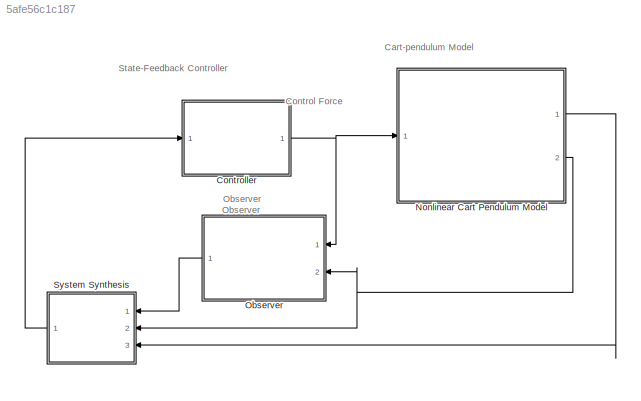
MODEL slx_5afe56c1c187
KIND model
CONFIG AbsTol = auto
CONFIG EnableMultiTasking = off
CONFIG FixedStep = auto
CONFIG MaxStep = auto
CONFIG MinStep = auto
CONFIG RelTol = 1e-3
CONFIG SampleTimeConstraint = Unconstrained
CONFIG Solver = VariableStepAuto
CONFIG SolverName = VariableStepAuto
CONFIG StartTime = 0.0
CONFIG StopTime = 10.0
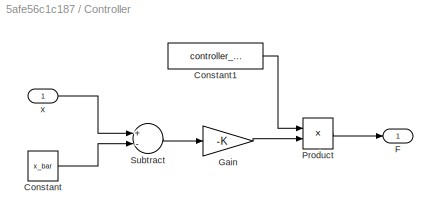
BLOCK [SubSystem] Controller
  Ports = [1, 1]
  RequestExecContextInheritance = off
BLOCK [Constant] Controller/Constant
  Value = x_bar
BLOCK [Constant] Controller/Constant1
  Value = controller_enabled
BLOCK [Outport] Controller/F
  IconDisplay = Port number
BLOCK [Gain] Controller/Gain
  Gain = -K
  Multiplication = Matrix(K*u)
  OutDataTypeStr = Inherit: Inherit via internal rule
  ParamDataTypeStr = Inherit: Inherit via internal rule
  SaturateOnIntegerOverflow = off
BLOCK [Product] Controller/Product
  InputSameDT = off
  OutDataTypeStr = Inherit: Inherit via internal rule
  Ports = [2, 1]
  RndMeth = Floor
  SaturateOnIntegerOverflow = off
BLOCK [Sum] Controller/Subtract
  InputSameDT = off
  Inputs = +-
  OutDataTypeStr = Inherit: Inherit via internal rule
  Ports = [2, 1]
  SaturateOnIntegerOverflow = off
BLOCK [Inport] Controller/x
  IconDisplay = Port number
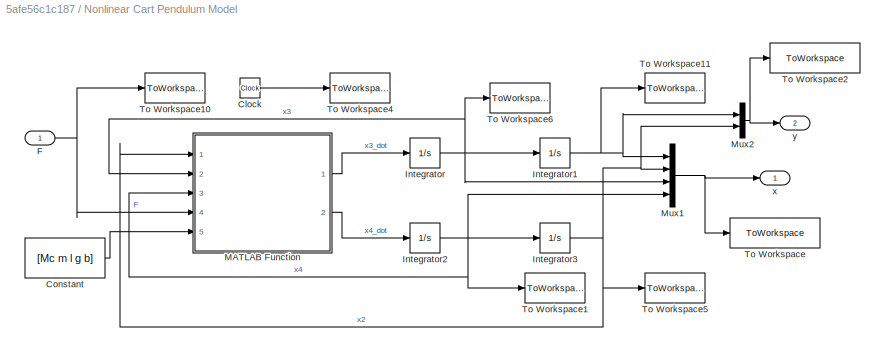
BLOCK [SubSystem] Nonlinear Cart Pendulum Model
  Ports = [1, 2]
  RequestExecContextInheritance = off
BLOCK [Clock] Nonlinear Cart Pendulum Model/Clock
BLOCK [Constant] Nonlinear Cart Pendulum Model/Constant
  Value = [Mc m l g b]
BLOCK [Inport] Nonlinear Cart Pendulum Model/F
  IconDisplay = Port number
BLOCK [Integrator] Nonlinear Cart Pendulum Model/Integrator
  InitialCondition = x0(3)
  Ports = [1, 1]
BLOCK [Integrator] Nonlinear Cart Pendulum Model/Integrator1
  InitialCondition = x0(1)
  Ports = [1, 1]
BLOCK [Integrator] Nonlinear Cart Pendulum Model/Integrator2
  InitialCondition = x0(4)
  Ports = [1, 1]
BLOCK [Integrator] Nonlinear Cart Pendulum Model/Integrator3
  InitialCondition = x0(2)
  Ports = [1, 1]
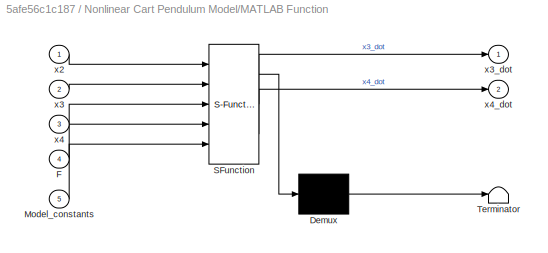
BLOCK [SubSystem] Nonlinear Cart Pendulum Model/MATLAB Function
  ErrorFcn = Stateflow.Translate.translate
  PermitHierarchicalResolution = ExplicitOnly
  Ports = [5, 2]
  RequestExecContextInheritance = off
  SFBlockType = MATLAB Function
  TreatAsAtomicUnit = on
BLOCK [Demux] Nonlinear Cart Pendulum Model/MATLAB Function/ Demux 
  Outputs = 1
  Ports = [1, 1]
BLOCK [S-Function] Nonlinear Cart Pendulum Model/MATLAB Function/ SFunction 
  EnableBusSupport = on
  FunctionName = sf_sfun
  PortCounts = [5 3]
  Ports = [5, 3]
  SFcnIsStateOwnerBlock = off
  SFunctionDeploymentMode = off
  Tag = Stateflow S-Function 2
BLOCK [Terminator] Nonlinear Cart Pendulum Model/MATLAB Function/ Terminator 
BLOCK [Inport] Nonlinear Cart Pendulum Model/MATLAB Function/F
  IconDisplay = Port number
  Port = 4
BLOCK [Inport] Nonlinear Cart Pendulum Model/MATLAB Function/Model_constants
  IconDisplay = Port number
  Port = 5
BLOCK [Inport] Nonlinear Cart Pendulum Model/MATLAB Function/x2
  IconDisplay = Port number
BLOCK [Inport] Nonlinear Cart Pendulum Model/MATLAB Function/x3
  IconDisplay = Port number
  Port = 2
BLOCK [Outport] Nonlinear Cart Pendulum Model/MATLAB Function/x3_dot
  IconDisplay = Port number
BLOCK [Inport] Nonlinear Cart Pendulum Model/MATLAB Function/x4
  IconDisplay = Port number
  Port = 3
BLOCK [Outport] Nonlinear Cart Pendulum Model/MATLAB Function/x4_dot
  IconDisplay = Port number
  Port = 2
BLOCK [Mux] Nonlinear Cart Pendulum Model/Mux1
  DisplayOption = bar
  Ports = [4, 1]
BLOCK [Mux] Nonlinear Cart Pendulum Model/Mux2
  DisplayOption = bar
  Inputs = 2
  Ports = [2, 1]
BLOCK [ToWorkspace] Nonlinear Cart Pendulum Model/To Workspace
  FixptAsFi = on
  MaxDataPoints = inf
  Ports = [1]
  SampleTime = -1
  VariableName = x
BLOCK [ToWorkspace] Nonlinear Cart Pendulum Model/To Workspace1
  MaxDataPoints = inf
  Ports = [1]
  SampleTime = -1
  VariableName = x4
BLOCK [ToWorkspace] Nonlinear Cart Pendulum Model/To Workspace10
  MaxDataPoints = inf
  Ports = [1]
  SampleTime = -1
  VariableName = F
BLOCK [ToWorkspace] Nonlinear Cart Pendulum Model/To Workspace11
  MaxDataPoints = inf
  Ports = [1]
  SampleTime = -1
  VariableName = x1
BLOCK [ToWorkspace] Nonlinear Cart Pendulum Model/To Workspace2
  FixptAsFi = on
  MaxDataPoints = inf
  Ports = [1]
  SampleTime = -1
  VariableName = y
BLOCK [ToWorkspace] Nonlinear Cart Pendulum Model/To Workspace4
  MaxDataPoints = inf
  Ports = [1]
  SampleTime = -1
  VariableName = t
BLOCK [ToWorkspace] Nonlinear Cart Pendulum Model/To Workspace5
  MaxDataPoints = inf
  Ports = [1]
  SampleTime = -1
  VariableName = x2
BLOCK [ToWorkspace] Nonlinear Cart Pendulum Model/To Workspace6
  MaxDataPoints = inf
  Ports = [1]
  SampleTime = -1
  VariableName = x3
BLOCK [Outport] Nonlinear Cart Pendulum Model/x
  IconDisplay = Port number
  VectorParamsAs1DForOutWhenUnconnected = off
BLOCK [Outport] Nonlinear Cart Pendulum Model/y
  IconDisplay = Port number
  Port = 2
  VectorParamsAs1DForOutWhenUnconnected = off
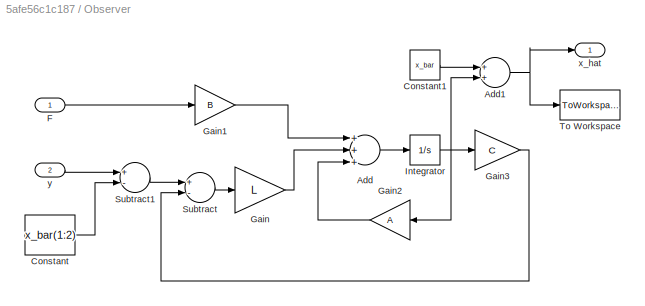
BLOCK [SubSystem] Observer
  Ports = [2, 1]
  RequestExecContextInheritance = off
BLOCK [Sum] Observer/Add
  InputSameDT = off
  Inputs = +++
  OutDataTypeStr = Inherit: Inherit via internal rule
  Ports = [3, 1]
  SaturateOnIntegerOverflow = off
BLOCK [Sum] Observer/Add1
  InputSameDT = off
  OutDataTypeStr = Inherit: Inherit via internal rule
  Ports = [2, 1]
  SaturateOnIntegerOverflow = off
BLOCK [Constant] Observer/Constant
  Value = x_bar(1:2)
BLOCK [Constant] Observer/Constant1
  Value = x_bar
BLOCK [Inport] Observer/F
  IconDisplay = Port number
BLOCK [Gain] Observer/Gain
  Gain = L
  Multiplication = Matrix(K*u)
  OutDataTypeStr = Inherit: Inherit via internal rule
  ParamDataTypeStr = Inherit: Inherit via internal rule
  SaturateOnIntegerOverflow = off
BLOCK [Gain] Observer/Gain1
  Gain = B
  Multiplication = Matrix(K*u)
  OutDataTypeStr = Inherit: Inherit via internal rule
  ParamDataTypeStr = Inherit: Inherit via internal rule
  SaturateOnIntegerOverflow = off
BLOCK [Gain] Observer/Gain2
  Gain = A
  Multiplication = Matrix(K*u)
  OutDataTypeStr = Inherit: Inherit via internal rule
  ParamDataTypeStr = Inherit: Inherit via internal rule
  SaturateOnIntegerOverflow = off
BLOCK [Gain] Observer/Gain3
  Gain = C
  Multiplication = Matrix(K*u)
  OutDataTypeStr = Inherit: Inherit via internal rule
  ParamDataTypeStr = Inherit: Inherit via internal rule
  SaturateOnIntegerOverflow = off
BLOCK [Integrator] Observer/Integrator
  Ports = [1, 1]
BLOCK [Sum] Observer/Subtract
  InputSameDT = off
  Inputs = +-
  OutDataTypeStr = Inherit: Inherit via internal rule
  Ports = [2, 1]
  SaturateOnIntegerOverflow = off
BLOCK [Sum] Observer/Subtract1
  InputSameDT = off
  Inputs = +-
  OutDataTypeStr = Inherit: Inherit via internal rule
  Ports = [2, 1]
  SaturateOnIntegerOverflow = off
BLOCK [ToWorkspace] Observer/To Workspace
  FixptAsFi = on
  MaxDataPoints = inf
  Ports = [1]
  SampleTime = -1
  VariableName = x_hat
BLOCK [Outport] Observer/x_hat
  IconDisplay = Port number
  VectorParamsAs1DForOutWhenUnconnected = off
BLOCK [Inport] Observer/y
  IconDisplay = Port number
  Port = 2
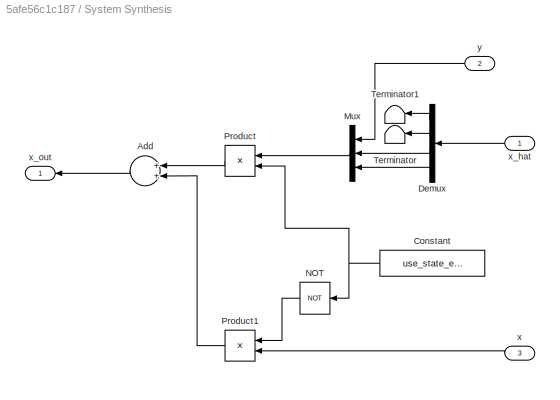
BLOCK [SubSystem] System Synthesis
  Ports = [3, 1]
  RequestExecContextInheritance = off
BLOCK [Sum] System Synthesis/Add
  InputSameDT = off
  OutDataTypeStr = Inherit: Inherit via internal rule
  Ports = [2, 1]
  SaturateOnIntegerOverflow = off
BLOCK [Constant] System Synthesis/Constant
  Value = use_state_estimates
BLOCK [Demux] System Synthesis/Demux
  DisplayOption = bar
  Ports = [1, 4]
BLOCK [Mux] System Synthesis/Mux
  DisplayOption = bar
  Inputs = 3
  Ports = [3, 1]
BLOCK [Logic] System Synthesis/NOT
  AllPortsSameDT = off
  IconShape = distinctive
  Operator = NOT
  OutDataTypeStr = boolean
  Ports = [1, 1]
BLOCK [Product] System Synthesis/Product
  InputSameDT = off
  OutDataTypeStr = Inherit: Inherit via internal rule
  Ports = [2, 1]
  RndMeth = Floor
  SaturateOnIntegerOverflow = off
BLOCK [Product] System Synthesis/Product1
  InputSameDT = off
  OutDataTypeStr = Inherit: Inherit via internal rule
  Ports = [2, 1]
  RndMeth = Floor
  SaturateOnIntegerOverflow = off
BLOCK [Terminator] System Synthesis/Terminator
BLOCK [Terminator] System Synthesis/Terminator1
BLOCK [Inport] System Synthesis/x
  IconDisplay = Port number
  Port = 3
BLOCK [Inport] System Synthesis/x_hat
  IconDisplay = Port number
BLOCK [Outport] System Synthesis/x_out
  IconDisplay = Port number
BLOCK [Inport] System Synthesis/y
  IconDisplay = Port number
  Port = 2
ANNOTATION (root): State-Feedback Controller
ANNOTATION (root): Cart-pendulum Model
ANNOTATION (root): Control Force
ANNOTATION (root): Observer
LINE Controller/Constant1:1 -> Controller/Product:1
LINE Controller/Constant:1 -> Controller/Subtract:2
LINE Controller/Gain:1 -> Controller/Product:2
LINE Controller/Product:1 -> Controller/F:1
LINE Controller/Subtract:1 -> Controller/Gain:1
LINE Controller/x:1 -> Controller/Subtract:1
NET Controller:1 -> Nonlinear Cart Pendulum Model:1, Observer:1
LINE Nonlinear Cart Pendulum Model/Clock:1 -> Nonlinear Cart Pendulum Model/To Workspace4:1
LINE Nonlinear Cart Pendulum Model/Constant:1 -> Nonlinear Cart Pendulum Model/MATLAB Function:5
NET Nonlinear Cart Pendulum Model/F:1 -> Nonlinear Cart Pendulum Model/MATLAB Function:4, Nonlinear Cart Pendulum Model/To Workspace10:1
NET Nonlinear Cart Pendulum Model/Integrator1:1 -> Nonlinear Cart Pendulum Model/Mux1:1, Nonlinear Cart Pendulum Model/Mux2:1, Nonlinear Cart Pendulum Model/To Workspace11:1
NET Nonlinear Cart Pendulum Model/Integrator2:1 -> Nonlinear Cart Pendulum Model/Integrator3:1, Nonlinear Cart Pendulum Model/MATLAB Function:3, Nonlinear Cart Pendulum Model/Mux1:4, Nonlinear Cart Pendulum Model/To Workspace1:1
NET Nonlinear Cart Pendulum Model/Integrator3:1 -> Nonlinear Cart Pendulum Model/MATLAB Function:1, Nonlinear Cart Pendulum Model/Mux1:2, Nonlinear Cart Pendulum Model/Mux2:2, Nonlinear Cart Pendulum Model/To Workspace5:1
NET Nonlinear Cart Pendulum Model/Integrator:1 -> Nonlinear Cart Pendulum Model/Integrator1:1, Nonlinear Cart Pendulum Model/MATLAB Function:2, Nonlinear Cart Pendulum Model/Mux1:3, Nonlinear Cart Pendulum Model/To Workspace6:1
LINE Nonlinear Cart Pendulum Model/MATLAB Function:1 -> Nonlinear Cart Pendulum Model/Integrator:1
LINE Nonlinear Cart Pendulum Model/MATLAB Function:2 -> Nonlinear Cart Pendulum Model/Integrator2:1
NET Nonlinear Cart Pendulum Model/Mux1:1 -> Nonlinear Cart Pendulum Model/To Workspace:1, Nonlinear Cart Pendulum Model/x:1
NET Nonlinear Cart Pendulum Model/Mux2:1 -> Nonlinear Cart Pendulum Model/To Workspace2:1, Nonlinear Cart Pendulum Model/y:1
LINE Nonlinear Cart Pendulum Model:1 -> System Synthesis:3
NET Nonlinear Cart Pendulum Model:2 -> Observer:2, System Synthesis:2
NET Observer/Add1:1 -> Observer/To Workspace:1, Observer/x_hat:1
LINE Observer/Add:1 -> Observer/Integrator:1
LINE Observer/Constant1:1 -> Observer/Add1:1
LINE Observer/Constant:1 -> Observer/Subtract1:2
LINE Observer/F:1 -> Observer/Gain1:1
LINE Observer/Gain1:1 -> Observer/Add:1
LINE Observer/Gain2:1 -> Observer/Add:3
LINE Observer/Gain3:1 -> Observer/Subtract:2
LINE Observer/Gain:1 -> Observer/Add:2
NET Observer/Integrator:1 -> Observer/Add1:2, Observer/Gain2:1, Observer/Gain3:1
LINE Observer/Subtract1:1 -> Observer/Subtract:1
LINE Observer/Subtract:1 -> Observer/Gain:1
LINE Observer/y:1 -> Observer/Subtract1:1
LINE Observer:1 -> System Synthesis:1
LINE System Synthesis/Add:1 -> System Synthesis/x_out:1
NET System Synthesis/Constant:1 -> System Synthesis/NOT:1, System Synthesis/Product:2
LINE System Synthesis/Demux:1 -> System Synthesis/Terminator1:1
LINE System Synthesis/Demux:2 -> System Synthesis/Terminator:1
LINE System Synthesis/Demux:3 -> System Synthesis/Mux:2
LINE System Synthesis/Demux:4 -> System Synthesis/Mux:3
LINE System Synthesis/Mux:1 -> System Synthesis/Product:1
LINE System Synthesis/NOT:1 -> System Synthesis/Product1:1
LINE System Synthesis/Product1:1 -> System Synthesis/Add:2
LINE System Synthesis/Product:1 -> System Synthesis/Add:1
LINE System Synthesis/x:1 -> System Synthesis/Product1:2
LINE System Synthesis/x_hat:1 -> System Synthesis/Demux:1
LINE System Synthesis/y:1 -> System Synthesis/Mux:1
LINE System Synthesis:1 -> Controller:1
note: NET lines group one-source signal fan-out (src -> all destinations, sorted); 1:1 wires keep LINE
CHART Nonlinear Cart Pendulum Model/MATLAB Function states=1 transitions=1
  STATE_LABEL 'eML_blk_kernel()'
  STATE_LABEL 'SCRIPT:\nfunction [x3_dot,x4_dot] = NonLinearEquations(x2,x3,x4,F,Model_constants)\n\n%Get Model Constants:\nMc = Model_constants(1);\nm = Model_constants(2);\nl = Model_constants(3);\ng = Model_constants(4);\nb = Model_constants(5);\n\n%x3_dot equation\nx3_dot = (x4^2*l*m*sin(x2)-g*m*sin(x2)*cos(x2)+F-b*x3)...\n    /(Mc+m-m*(cos(x2))^2);\n\n%x4_dot equation\nx4_dot = (-l*m*sin(x2)*cos(x2)*x4^2+g*(Mc+m)*sin(x2)....<+58ch>'
